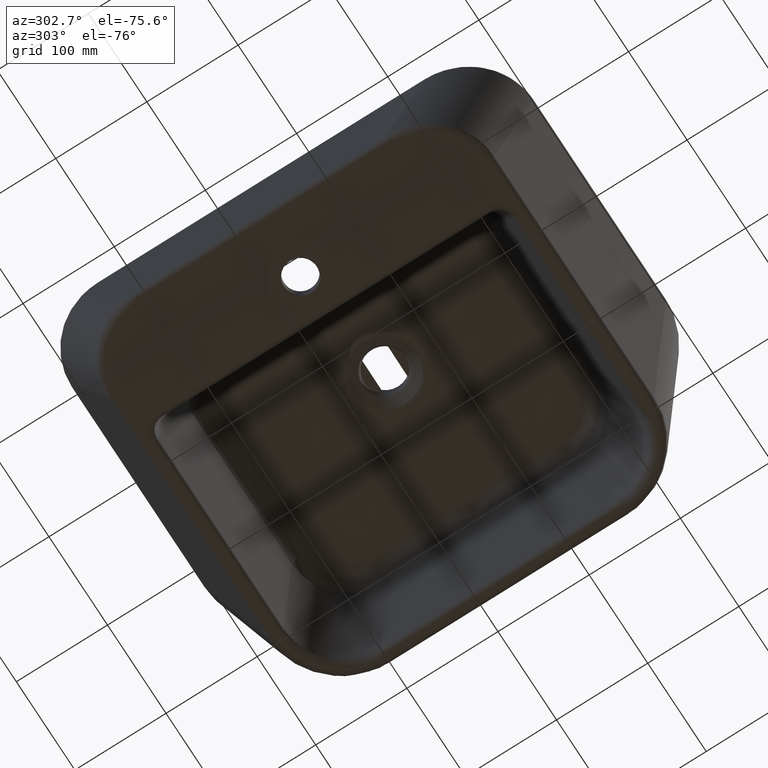
[diagram: clean part render]
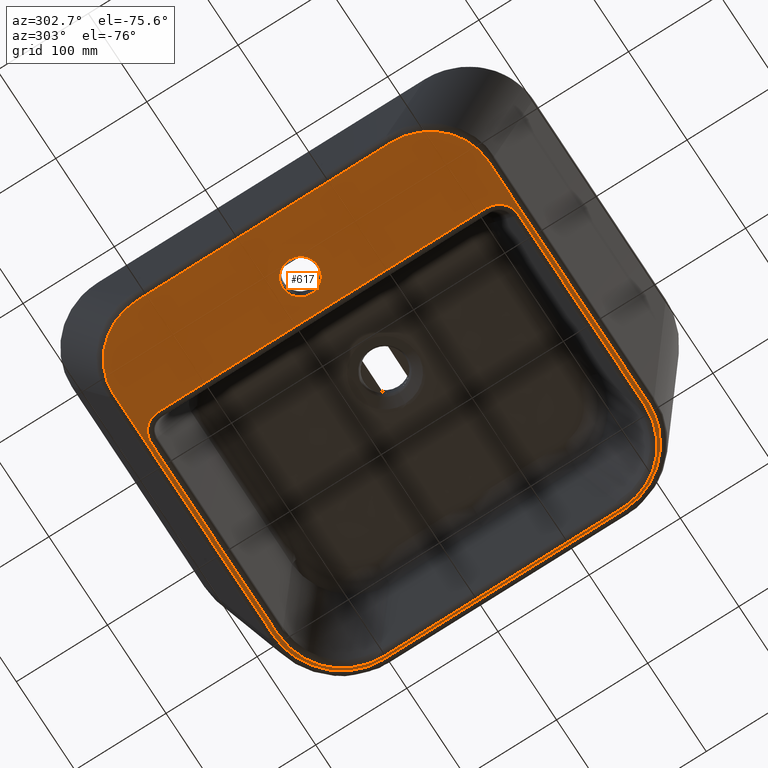
[diagram: same view with one face highlighted and labeled with its STEP entity id]
A machine part, auxiliary view. The second image highlights one B-rep face of the part: STEP entity #617.
In plain terms, the highlighted planar face has unit normal (0, 0, -1).
Its self-contained STEP definition (entity closure, byte-faithful):
#264=PLANE('',#3219);
#288=FACE_BOUND('',#1064,.T.);
#289=FACE_BOUND('',#1065,.T.);
#290=FACE_BOUND('',#1066,.T.);
#311=ELLIPSE('',#3211,70.1931770379949,63.7573404255319);
#312=ELLIPSE('',#3212,66.3520497634327,63.315);
#313=ELLIPSE('',#3213,66.3520497634327,63.315);
#314=ELLIPSE('',#3214,70.1931770379949,63.7573404255319);
#315=ELLIPSE('',#3215,82.2786333911133,75.3989361702128);
#316=ELLIPSE('',#3216,82.2786333911133,75.3989361702128);
#317=ELLIPSE('',#3217,23.4445069990502,22.1170212765957);
#318=ELLIPSE('',#3218,23.4445069990502,22.1170212765957);
#343=CIRCLE('',#3209,19.093085106383);
#344=CIRCLE('',#3210,19.093085106383);
#472=LINE('',#4373,#548);
#473=LINE('',#4378,#549);
#474=LINE('',#4382,#550);
#475=LINE('',#4386,#551);
#476=LINE('',#4392,#552);
#477=LINE('',#4396,#553);
#478=LINE('',#4400,#554);
#479=LINE('',#4404,#555);
#548=VECTOR('',#3477,1.);
#549=VECTOR('',#3480,1.);
#550=VECTOR('',#3483,1.);
#551=VECTOR('',#3486,1.);
#552=VECTOR('',#3491,1.);
#553=VECTOR('',#3494,1.);
#554=VECTOR('',#3497,1.);
#555=VECTOR('',#3500,1.);
#617=ADVANCED_FACE('',(#288,#289,#290),#264,.T.);
#1064=EDGE_LOOP('',(#1338,#1339));
#1065=EDGE_LOOP('',(#1340,#1341,#1342,#1343,#1344,#1345,#1346,#1347));
#1066=EDGE_LOOP('',(#1348,#1349,#1350,#1351,#1352,#1353,#1354,#1355));
#1338=ORIENTED_EDGE('',*,*,#2546,.T.);
#1339=ORIENTED_EDGE('',*,*,#2547,.T.);
#1340=ORIENTED_EDGE('',*,*,#2548,.F.);
#1341=ORIENTED_EDGE('',*,*,#2549,.T.);
#1342=ORIENTED_EDGE('',*,*,#2550,.T.);
#1343=ORIENTED_EDGE('',*,*,#2551,.T.);
#1344=ORIENTED_EDGE('',*,*,#2552,.F.);
#1345=ORIENTED_EDGE('',*,*,#2553,.F.);
#1346=ORIENTED_EDGE('',*,*,#2554,.F.);
#1347=ORIENTED_EDGE('',*,*,#2555,.F.);
#1348=ORIENTED_EDGE('',*,*,#2556,.T.);
#1349=ORIENTED_EDGE('',*,*,#2557,.F.);
#1350=ORIENTED_EDGE('',*,*,#2558,.F.);
#1351=ORIENTED_EDGE('',*,*,#2559,.F.);
#1352=ORIENTED_EDGE('',*,*,#2560,.F.);
#1353=ORIENTED_EDGE('',*,*,#2561,.F.);
#1354=ORIENTED_EDGE('',*,*,#2562,.T.);
#1355=ORIENTED_EDGE('',*,*,#2563,.T.);
#2271=VERTEX_POINT('',#4370);
#2272=VERTEX_POINT('',#4371);
#2273=VERTEX_POINT('',#4374);
#2274=VERTEX_POINT('',#4375);
#2275=VERTEX_POINT('',#4377);
#2276=VERTEX_POINT('',#4379);
#2277=VERTEX_POINT('',#4381);
#2278=VERTEX_POINT('',#4383);
#2279=VERTEX_POINT('',#4385);
#2280=VERTEX_POINT('',#4387);
#2281=VERTEX_POINT('',#4390);
#2282=VERTEX_POINT('',#4391);
#2283=VERTEX_POINT('',#4393);
#2284=VERTEX_POINT('',#4395);
#2285=VERTEX_POINT('',#4397);
#2286=VERTEX_POINT('',#4399);
#2287=VERTEX_POINT('',#4401);
#2288=VERTEX_POINT('',#4403);
#2546=EDGE_CURVE('',#2271,#2272,#343,.T.);
#2547=EDGE_CURVE('',#2272,#2271,#344,.T.);
#2548=EDGE_CURVE('',#2273,#2274,#472,.T.);
#2549=EDGE_CURVE('',#2273,#2275,#311,.T.);
#2550=EDGE_CURVE('',#2275,#2276,#473,.T.);
#2551=EDGE_CURVE('',#2276,#2277,#312,.T.);
#2552=EDGE_CURVE('',#2278,#2277,#474,.T.);
#2553=EDGE_CURVE('',#2279,#2278,#313,.T.);
#2554=EDGE_CURVE('',#2280,#2279,#475,.T.);
#2555=EDGE_CURVE('',#2274,#2280,#314,.T.);
#2556=EDGE_CURVE('',#2281,#2282,#315,.T.);
#2557=EDGE_CURVE('',#2283,#2282,#476,.T.);
#2558=EDGE_CURVE('',#2284,#2283,#316,.T.);
#2559=EDGE_CURVE('',#2285,#2284,#477,.T.);
#2560=EDGE_CURVE('',#2286,#2285,#317,.T.);
#2561=EDGE_CURVE('',#2287,#2286,#478,.T.);
#2562=EDGE_CURVE('',#2287,#2288,#318,.T.);
#2563=EDGE_CURVE('',#2288,#2281,#479,.T.);
#3209=AXIS2_PLACEMENT_3D('',#4369,#3473,#3474);
#3210=AXIS2_PLACEMENT_3D('',#4372,#3475,#3476);
#3211=AXIS2_PLACEMENT_3D('',#4376,#3478,#3479);
#3212=AXIS2_PLACEMENT_3D('',#4380,#3481,#3482);
#3213=AXIS2_PLACEMENT_3D('',#4384,#3484,#3485);
#3214=AXIS2_PLACEMENT_3D('',#4388,#3487,#3488);
#3215=AXIS2_PLACEMENT_3D('',#4389,#3489,#3490);
#3216=AXIS2_PLACEMENT_3D('',#4394,#3492,#3493);
#3217=AXIS2_PLACEMENT_3D('',#4398,#3495,#3496);
#3218=AXIS2_PLACEMENT_3D('',#4402,#3498,#3499);
#3219=AXIS2_PLACEMENT_3D('',#4405,#3501,#3502);
#3473=DIRECTION('',(0.,0.,1.));
#3474=DIRECTION('',(-1.,0.,0.));
#3475=DIRECTION('',(0.,0.,1.));
#3476=DIRECTION('',(-1.,0.,0.));
#3477=DIRECTION('',(0.,1.,0.));
#3478=DIRECTION('',(0.,0.,-1.));
#3479=DIRECTION('',(0.73373421465365,0.679436606495846,0.));
#3480=DIRECTION('',(-1.,2.20046511983548E-017,0.));
#3481=DIRECTION('',(0.,0.,-1.));
#3482=DIRECTION('',(0.0583546365561322,-0.99829591624548,0.));
#3483=DIRECTION('',(0.,-1.,0.));
#3484=DIRECTION('',(0.,0.,1.));
#3485=DIRECTION('',(0.0583546365561322,0.99829591624548,0.));
#3486=DIRECTION('',(-1.,-2.20046511983548E-017,0.));
#3487=DIRECTION('',(0.,0.,1.));
#3488=DIRECTION('',(0.73373421465365,-0.679436606495846,0.));
#3489=DIRECTION('',(0.,0.,1.));
#3490=DIRECTION('',(-0.709620309660459,0.704584286027863,0.));
#3491=DIRECTION('',(0.,-1.,0.));
#3492=DIRECTION('',(0.,0.,-1.));
#3493=DIRECTION('',(-0.709620309660459,-0.704584286027863,0.));
#3494=DIRECTION('',(1.,0.,0.));
#3495=DIRECTION('',(0.,0.,-1.));
#3496=DIRECTION('',(0.48360586737839,-0.875285876178289,0.));
#3497=DIRECTION('',(0.,1.,0.));
#3498=DIRECTION('',(0.,0.,1.));
#3499=DIRECTION('',(0.48360586737839,0.875285876178289,0.));
#3500=DIRECTION('',(1.,0.,0.));
#3501=DIRECTION('',(0.,0.,-1.));
#3502=DIRECTION('',(-1.,0.,0.));
#4369=CARTESIAN_POINT('',(119.08638886571,-828.014087620053,84.2844643652065));
#4370=CARTESIAN_POINT('',(99.9953396014273,-827.735274298461,84.2844643652065));
#4371=CARTESIAN_POINT('',(138.177438129994,-827.735274298461,84.2844643652065));
#4372=CARTESIAN_POINT('',(119.08638886571,-827.45646097687,84.2844643652065));
#4373=CARTESIAN_POINT('',(467.350492395531,-1101.15459927474,84.2844643652065));
#4374=CARTESIAN_POINT('',(467.350492395531,-960.172788547953,84.2844643652065));
#4375=CARTESIAN_POINT('',(467.350492395531,-695.29776004897,84.2844643652065));
#4376=CARTESIAN_POINT('',(400.051793348863,-966.558811128225,84.2844643652065));
#4377=CARTESIAN_POINT('',(393.618618641533,-1033.36424255001,84.2844643652065));
#4378=CARTESIAN_POINT('',(476.568101351746,-1033.36424255001,84.2844643652065));
#4379=CARTESIAN_POINT('',(120.278768753594,-1033.36424255001,84.2844643652065));
#4380=CARTESIAN_POINT('',(119.932966348669,-967.022298826515,84.2844643652065));
#4381=CARTESIAN_POINT('',(56.6073772412783,-966.660024996767,84.2844643652065));
#4382=CARTESIAN_POINT('',(56.6073772412784,-1101.15459927474,84.2844643652065));
#4383=CARTESIAN_POINT('',(56.6073772412783,-688.810523600156,84.2844643652065));
#4384=CARTESIAN_POINT('',(119.932966348669,-688.448249770408,84.2844643652065));
#4385=CARTESIAN_POINT('',(120.278768753594,-622.106306046915,84.2844643652065));
#4386=CARTESIAN_POINT('',(476.568101351746,-622.106306046915,84.2844643652065));
#4387=CARTESIAN_POINT('',(393.618618641533,-622.106306046915,84.2844643652065));
#4388=CARTESIAN_POINT('',(400.051793348863,-688.911737468698,84.2844643652065));
#4389=CARTESIAN_POINT('',(386.087751809085,-950.275518902484,84.2844643652065));
#4390=CARTESIAN_POINT('',(392.962868262861,-1029.1648317506,84.2844643652065));
#4391=CARTESIAN_POINT('',(465.026015070072,-957.146372027235,84.2844643652065));
#4392=CARTESIAN_POINT('',(465.026015070072,-1101.15459927474,84.2844643652065));
#4393=CARTESIAN_POINT('',(465.026015070072,-698.324176569688,84.2844643652065));
#4394=CARTESIAN_POINT('',(386.087751809085,-705.195029694438,84.2844643652065));
#4395=CARTESIAN_POINT('',(392.962868262861,-626.30571684632,84.2844643652065));
#4396=CARTESIAN_POINT('',(476.568101351746,-626.30571684632,84.2844643652065));
#4397=CARTESIAN_POINT('',(177.792478725261,-626.305716846321,84.2844643652065));
#4398=CARTESIAN_POINT('',(178.898822339196,-649.446581948435,84.2844643652065));
#4399=CARTESIAN_POINT('',(156.464297585958,-648.305405631653,84.2844643652065));
#4400=CARTESIAN_POINT('',(156.464297585958,-646.502602451369,84.2844643652065));
#4401=CARTESIAN_POINT('',(156.464297585958,-1007.16514296527,84.2844643652065));
#4402=CARTESIAN_POINT('',(178.898822339196,-1006.02396664849,84.2844643652065));
#4403=CARTESIAN_POINT('',(177.792478725261,-1029.1648317506,84.2844643652065));
#4404=CARTESIAN_POINT('',(476.568101351746,-1029.1648317506,84.2844643652065));
#4405=CARTESIAN_POINT('',(476.568101351746,-1101.15459927474,84.2844643652065));